MODEL slx_857249faba13
KIND model
CONFIG AbsTol = auto
CONFIG EnableMultiTasking = off
CONFIG FixedStep = auto
CONFIG MaxStep = auto
CONFIG MinStep = auto
CONFIG RelTol = 1e-3
CONFIG SampleTimeConstraint = Unconstrained
CONFIG SolverName = FixedStepAuto
CONFIG StartTime = 0.0
CONFIG StopTime = inf
BLOCK [Clock] Clock1
BLOCK [Constant] Constant
  Value = Q_des
BLOCK [Constant] Constant1
  Value = 0
BLOCK [Display] Display1
  Decimation = 1
  Ports = [1]
BLOCK [Display] Display2
  Decimation = 1
  Ports = [1]
BLOCK [Display] Display3
  Decimation = 1
  Ports = [1]
BLOCK [Display] Display7
  Decimation = 1
  Ports = [1]
BLOCK [Gain] Gain
  Gain = 1.1
BLOCK [Gain] Gain1
  Gain = 1.2
BLOCK [Gain] Gain2
  Gain = 1.3
BLOCK [Gain] Gain3
  Gain = 1.4
BLOCK [Gain] Gain4
  Gain = 0.6
BLOCK [Gain] Gain5
  Gain = 0.5
BLOCK [Gain] Gain6
  Gain = 0.7
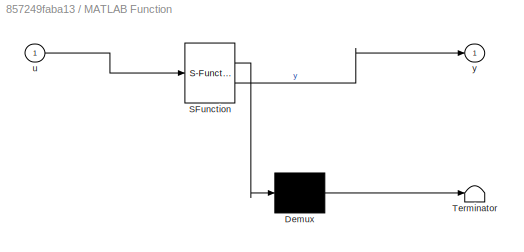
BLOCK [SubSystem] MATLAB Function
  ErrorFcn = Stateflow.Translate.translate
  PermitHierarchicalResolution = ExplicitOnly
  Ports = [1, 1]
  RequestExecContextInheritance = off
  SFBlockType = MATLAB Function
  TreatAsAtomicUnit = on
BLOCK [Demux] MATLAB Function/ Demux 
  Outputs = 1
  Ports = [1, 1]
BLOCK [S-Function] MATLAB Function/ SFunction 
  EnableBusSupport = on
  FunctionName = sf_sfun
  PortCounts = [1 2]
  Ports = [1, 2]
  SFcnIsStateOwnerBlock = off
  SFunctionDeploymentMode = off
  Tag = Stateflow S-Function 2
BLOCK [Terminator] MATLAB Function/ Terminator 
BLOCK [Inport] MATLAB Function/u
BLOCK [Outport] MATLAB Function/y
BLOCK [ManualSwitch] Manual Switch
  CurrentSetting = 0
BLOCK [Mux] Mux1
  DisplayOption = bar
  Inputs = 7
  Ports = [7, 1]
BLOCK [S-Function] S-Function2
  EnableBusSupport = off
  FunctionName = teng4Sfcn_SIMtoVREP
  Ports = [1, 1]
  SFcnIsStateOwnerBlock = off
  SFunctionDeploymentMode = off
BLOCK [Sin] Sine Wave1
  Ports = [0, 1]
  SampleTime = 0
BLOCK [Reference] Slider Gain  REF=simulink/Math
Operations/Slider
Gain
  Ports = [1, 1]
  SourceBlock = simulink/Math\nOperations/Slider\nGain
  SourceProductBaseCode = SL
  SourceType = Slider Gain
BLOCK [ToWorkspace] To Workspace
  FixptAsFi = on
  MaxDataPoints = inf
  Ports = [1]
  SampleTime = -1
  SaveFormat = Structure With Time
  VariableName = loopitr
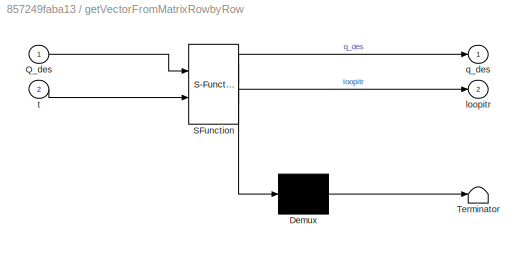
BLOCK [SubSystem] getVectorFromMatrixRowbyRow
  ErrorFcn = Stateflow.Translate.translate
  PermitHierarchicalResolution = ExplicitOnly
  Ports = [2, 2]
  RequestExecContextInheritance = off
  SFBlockType = MATLAB Function
  TreatAsAtomicUnit = on
BLOCK [Demux] getVectorFromMatrixRowbyRow/ Demux 
  Outputs = 1
  Ports = [1, 1]
BLOCK [S-Function] getVectorFromMatrixRowbyRow/ SFunction 
  EnableBusSupport = on
  FunctionName = sf_sfun
  PortCounts = [2 3]
  Ports = [2, 3]
  SFcnIsStateOwnerBlock = off
  SFunctionDeploymentMode = off
  Tag = Stateflow S-Function 1
BLOCK [Terminator] getVectorFromMatrixRowbyRow/ Terminator 
BLOCK [Inport] getVectorFromMatrixRowbyRow/Q_des
BLOCK [Outport] getVectorFromMatrixRowbyRow/loopitr
  Port = 2
BLOCK [Outport] getVectorFromMatrixRowbyRow/q_des
BLOCK [Inport] getVectorFromMatrixRowbyRow/t
  Port = 2
ANNOTATION (root): CoppeliaSim - Simulink Communication via S-function. Version 1 Author : Teng Li. <email> University of Alberta Edmonton, Canada. (updated date:2021-05-21)
LINE Clock1:1 -> getVectorFromMatrixRowbyRow:2
NET Constant1:1 -> Gain4:1, Gain5:1, Gain6:1
LINE Constant:1 -> getVectorFromMatrixRowbyRow:1
LINE Gain1:1 -> Mux1:2
LINE Gain2:1 -> Mux1:3
LINE Gain3:1 -> Mux1:4
LINE Gain4:1 -> Mux1:6
LINE Gain5:1 -> Mux1:5
LINE Gain6:1 -> Mux1:7
LINE Gain:1 -> Mux1:1
NET Manual Switch:1 -> Display1:1, S-Function2:1
LINE Mux1:1 -> Manual Switch:1
LINE S-Function2:1 -> Display7:1
LINE Sine Wave1:1 -> Slider Gain:1
NET Slider Gain:1 -> Gain1:1, Gain2:1, Gain3:1, Gain:1
NET getVectorFromMatrixRowbyRow:1 -> Display3:1, Manual Switch:2
NET getVectorFromMatrixRowbyRow:2 -> Display2:1, To Workspace:1
note: NET lines group one-source signal fan-out (src -> all destinations, sorted); 1:1 wires keep LINE
CHART getVectorFromMatrixRowbyRow states=1 transitions=1
  STATE_LABEL 'eML_blk_kernel()'
  STATE_LABEL 'SCRIPT:\nfunction [q_des,loopitr] = fcn(Q_des,t)\n\nQ_des=reshape(Q_des,[],7);\nsize_temp = size(Q_des);\nsize1=size_temp(1);\n\n\nloop_i = round(t*1000)+1;\nif loop_i>size1 %DONT exceed the length of the predefined matrix\n    loop_i=size1;\nend\n\nq = Q_des(loop_i,1:7); %get one row from matrix Q_des.\nq_des=reshape(q,[7,1]);\n\nloopitr = loop_i; %for observation only.'
CHART MATLAB Function states=1 transitions=1
  STATE_LABEL 'eML_blk_kernel()'
  STATE_LABEL 'SCRIPT:\nfunction y = fcn(u)\n\ny = u;\n'
CHART  states=0 transitions=0
CHART  states=0 transitions=0
